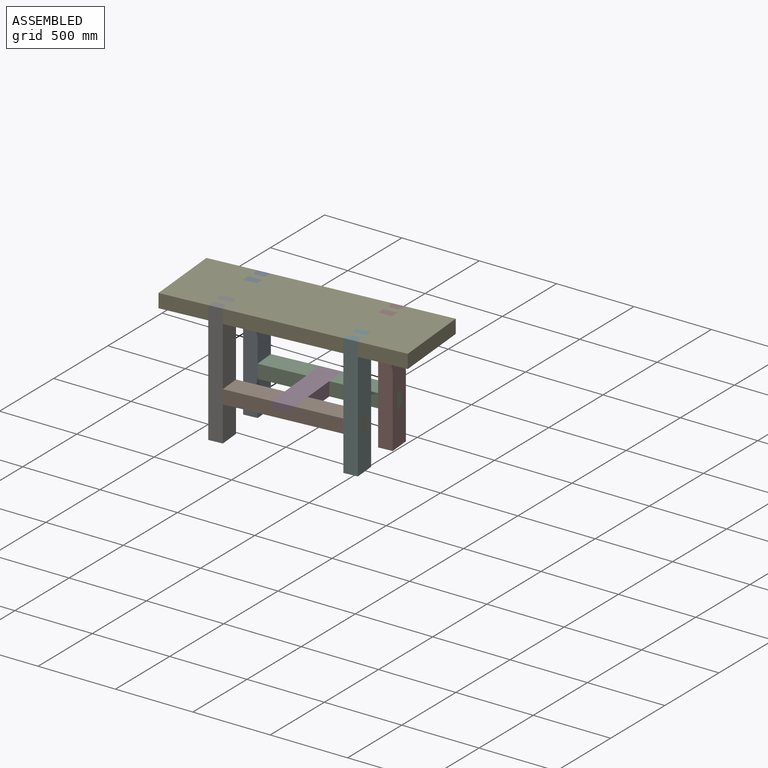
[diagram: assembled view]
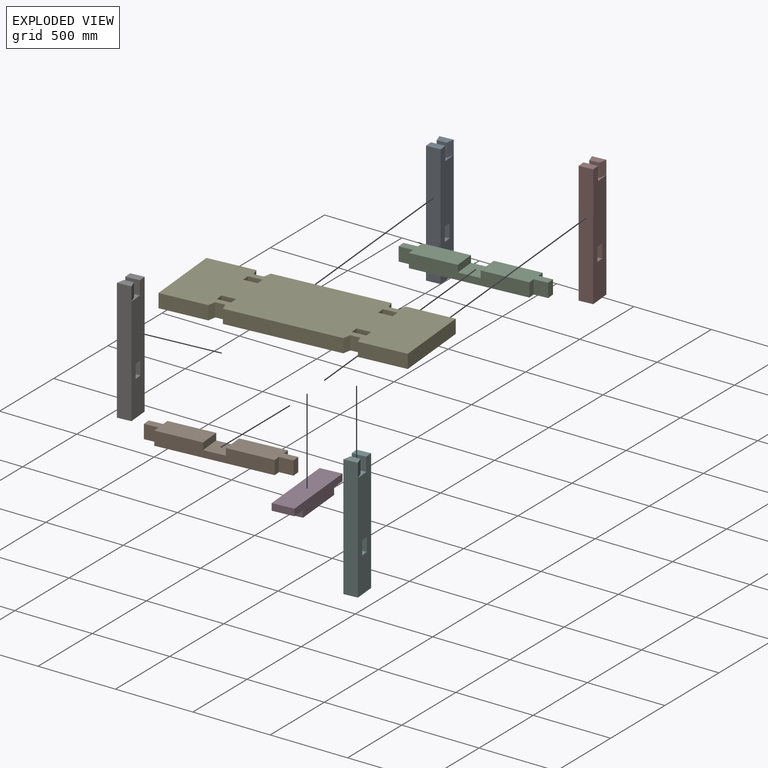
[diagram: exploded view]
GUIDED TOUR — MATED ASSEMBLY (Onshape document 76c9e357946768752bc6cd6b, AutoMate assembly 76c9e357946768752bc6cd6b_9625261e1ae037c5220bcdb9_71f5eba2f76652e58eee0722_default)

This assembly has 8 components, labeled P0..P7 below (a component is one placed occurrence of a part; the same part can appear more than once), held together by 21 mates. A mate is a constraint between two components; its type names the relative motion it leaves free:
  PLANAR — leaves sliding in the plane through the listed point (normal = the listed direction) and rotation about that normal free.
Axis/direction vectors are unit vectors and 'through' points are millimeter coordinates, both in the assembly's world frame.

MATES
  1. PLANAR "Planar 2": P4 <-> P5, direction (0.087, -0.996, 0.000) through (-127.85, -738.86, -859.41) mm
  2. PLANAR "Planar 16": P2 <-> P7, direction (0.996, 0.087, 0.000) through (-193.99, -492.87, -1329.31) mm
  3. PLANAR "Planar 15": P1 <-> P6, direction (0.000, 0.000, 1.000) through (-988.40, -884.27, -1284.86) mm
  4. PLANAR "Planar 8": P7 <-> P4, direction (-0.940, -0.342, 0.000) through (-195.24, -400.55, -859.41) mm
  5. PLANAR "Planar 12": P0 <-> P4, direction (0.087, -0.996, 0.000) through (-970.13, -583.08, -1208.66) mm
  6. PLANAR "Planar 18": P7 <-> P2, direction (-0.087, 0.996, 0.000) through (-151.65, -466.85, -1329.31) mm
  7. PLANAR "Planar 3": P5 <-> P4, direction (-0.985, 0.174, 0.000) through (-155.39, -856.01, -859.41) mm
  8. PLANAR "Planar 20": P3 <-> P1, direction (0.087, -0.996, 0.000) through (-526.86, -914.01, -1307.08) mm
  9. PLANAR "Planar 21": P3 <-> P1, direction (-0.996, -0.087, 0.000) through (-618.58, -667.06, -1324.59) mm
  10. PLANAR "Planar 19": P3 <-> P2, direction (0.000, 0.000, -1.000) through (-567.26, -452.22, -1329.31) mm
  11. PLANAR "Planar 6": P6 <-> P4, direction (-0.087, 0.996, 0.000) through (-950.21, -810.81, -1208.66) mm
  12. PLANAR "Planar 17": P2 <-> P7, direction (0.000, 0.000, 1.000) through (-327.95, -456.78, -1284.86) mm
  13. PLANAR "Planar 9": P7 <-> P4, direction (0.087, -0.996, 0.000) through (-147.78, -511.13, -1208.66) mm
  14. PLANAR "Planar 5": P6 <-> P4, direction (-0.985, 0.174, 0.000) through (-977.75, -927.96, -859.41) mm
  15. PLANAR "Planar 7": P7 <-> P4, direction (0.000, 0.000, 1.000) through (-154.40, -435.47, -903.86) mm
  16. PLANAR "Planar 10": P0 <-> P4, direction (0.000, 0.000, 1.000) through (-976.75, -507.42, -903.86) mm
  17. PLANAR "Planar 4": P6 <-> P4, direction (0.000, 0.000, 1.000) through (-943.59, -886.47, -903.86) mm
  18. PLANAR "Planar 1": P5 <-> P4, direction (0.000, 0.000, 1.000) through (-121.23, -814.53, -903.86) mm
  19. PLANAR "Planar 14": P6 <-> P1, direction (0.087, -0.996, 0.000) through (-946.34, -855.09, -1329.31) mm
  20. PLANAR "Planar 11": P0 <-> P4, direction (0.985, -0.174, 0.000) through (-942.60, -465.93, -859.41) mm
  21. PLANAR "Planar 13": P1 <-> P6, direction (-0.996, -0.087, 0.000) through (-903.99, -829.08, -1329.31) mm

ASSEMBLY ORDER
  1. P4 — the base component [order verified]
  2. P6 [order verified]
  3. P1 [order verified]
  4. P5 [order verified]
  5. P3 [order verified]
  6. P0 [order verified]
  7. P2 [order verified]
  8. P7 [order verified]
Order-tag legend:
  [order verified] — this step's position reverses a verified removal order: the component was checked to insert without passing through the ones already placed.

Of the 8 components, 8 carry the full construction recipe — the FeatureScript program that regenerates the part's solid from scratch; the rest are supplied as boundary geometry only.
Each toured component is shown spotlighted twice — in the assembled view, then in the exploded view, where a leader line traces a displaced component back to its assembled socket (saturated green if recipe-attached, orange if geometry-only; every other component desaturated gray) — followed by its recipe or geometry summary and the mates that hold it.
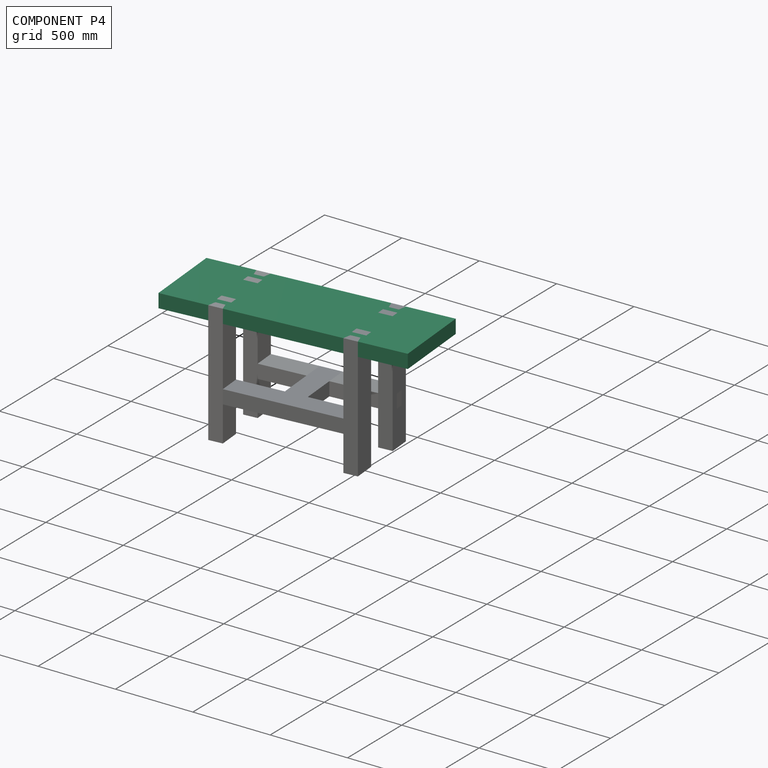
[diagram: component P4 — assembled]
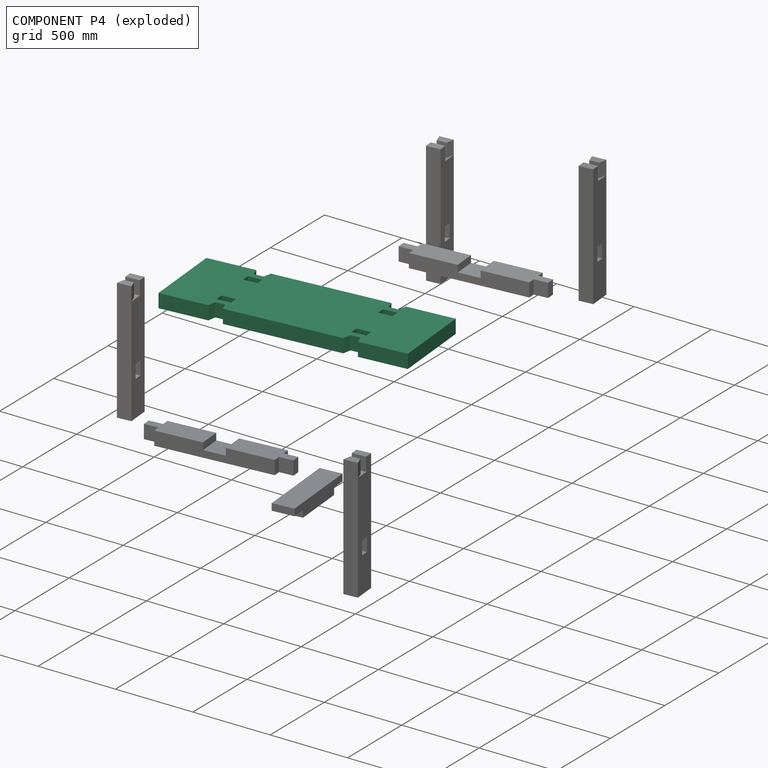
[diagram: component P4 — exploded]
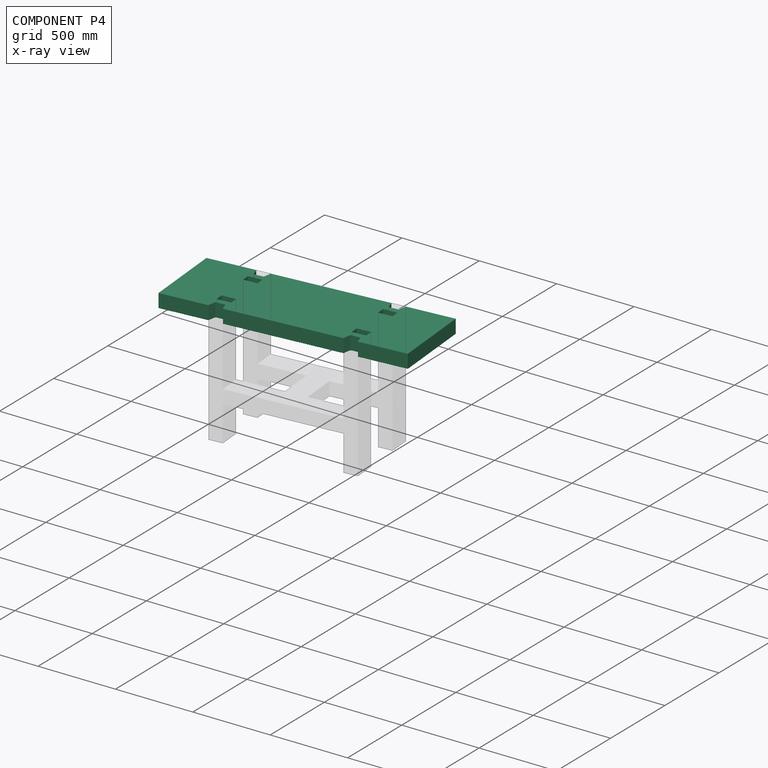
[diagram: component P4 — x-ray view]
COMPONENT P4 — recipe-attached (CADFS 00920089, mesh-verified: the recipe's output STEP matches this component's geometry to below the mesh-comparison resolution (tessellation chordal tolerance ~2.41 mm)).
Held by: PLANAR mate "Planar 2" to P5; PLANAR mate "Planar 8" to P7; PLANAR mate "Planar 12" to P0; PLANAR mate "Planar 3" to P5; PLANAR mate "Planar 6" to P6; PLANAR mate "Planar 9" to P7; PLANAR mate "Planar 5" to P6; PLANAR mate "Planar 7" to P7; PLANAR mate "Planar 10" to P0; PLANAR mate "Planar 4" to P6; PLANAR mate "Planar 1" to P5; PLANAR mate "Planar 11" to P0.
Construction recipe (FeatureScript — the CAD program that rebuilds this solid; sketch coordinates are in the units given by the * unit suffixes, e.g. mm):

FeatureScript 1511;
import(path : "onshape/std/geometry.fs", version : "1511.0");
import(path : "onshape/std/common.fs", version : "1511.0");
const mm = millimeter;
const VERTEX = EntityType.VERTEX;
const EDGE = EntityType.EDGE;
const FACE = EntityType.FACE;
const BODY = EntityType.BODY;
function v(x, y){return vector(x, y);}
function OD(order){return orderDisambiguation(order);}
function OSD(set){return originalSetDisambiguation(set);}
function TD(topology){return topologyDisambiguation(topology);}
function TDD(query){return trueDependencyDisambiguation(query);}
function sQuery(a, b, c) {return sketchEntityQuery(a, b, c);}

annotation { "Feature Type Name" : "Feature", "Feature Type Description" : "" }
export const myFeature = defineFeature(function(context is Context, id is Id, definition is map)
    precondition{}
    {
        {
            var Q0;
            Q0=qCreatedBy(makeId("Top.planeOp"),FACE);
            var sketch = newSketch(context, id + "F0", { "sketchPlane" : qUnion([Q0])});
            skLineSegment(sketch, "E0.bottom", {"start": v(0, 0) * mm, "end": v(1524, 0) * mm});
            skLineSegment(sketch, "E0.top", {"start": v(0, 508) * mm, "end": v(1524, 508) * mm});
            skLineSegment(sketch, "E0.left", {"start": v(0, 0) * mm, "end": v(0, 508) * mm});
            skLineSegment(sketch, "E0.right", {"start": v(1524, 0) * mm, "end": v(1524, 508) * mm});
            skSolve(sketch);
        }
        {
            var Q0;
            Q0=makeQuery(id+"F0.imprint","IMPRINT",FACE,{"disambiguationData":[TD([[makeQuery(id+"F0.imprint","IMPRINT",EDGE,{"derivedFrom":sQuery(id+"F0.wireOp",EDGE,"E0.bottom")}),1.0]])]});
            extrude(context, id + "F1", {"entities" : qUnion([Q0]), "depth" : 88.9 * mm, "offsetDistance" : 25.4 * mm});
        }
        {
            var Q0;
            Q0=makeQuery(id+"F1.opExtrude","CAP_FACE",FACE,{"disambiguationData":[OSD([sQuery(id+"F0.wireOp",EDGE,"E0.bottom"),sQuery(id+"F0.wireOp",EDGE,"E0.top"),sQuery(id+"F0.wireOp",EDGE,"E0.left"),sQuery(id+"F0.wireOp",EDGE,"E0.right")])],"isStart":false});
            var sketch = newSketch(context, id + "F2", { "sketchPlane" : qUnion([Q0])});
            skLineSegment(sketch, "E1", {"start": v(304.8, 0) * mm, "end": v(393.7, 0) * mm});
            skLineSegment(sketch, "E2", {"start": v(393.7, 0) * mm, "end": v(380.09, 50.8) * mm});
            skLineSegment(sketch, "E3", {"start": v(380.09, 50.8) * mm, "end": v(318.41, 50.8) * mm});
            skLineSegment(sketch, "E4", {"start": v(318.41, 50.8) * mm, "end": v(304.8, 0) * mm});
            skLineSegment(sketch, "E5", {"start": v(304.8, 88.9) * mm, "end": v(393.7, 88.9) * mm});
            skLineSegment(sketch, "E6", {"start": v(393.7, 88.9) * mm, "end": v(393.7, 139.7) * mm});
            skLineSegment(sketch, "E7", {"start": v(393.7, 139.7) * mm, "end": v(304.8, 139.7) * mm});
            skLineSegment(sketch, "E8", {"start": v(304.8, 139.7) * mm, "end": v(304.8, 88.9) * mm});
            skLineSegment(sketch, "E9", {"start": v(1130.3, 0) * mm, "end": v(1219.2, 0) * mm});
            skLineSegment(sketch, "E10", {"start": v(1219.2, 0) * mm, "end": v(1205.59, 50.8) * mm});
            skLineSegment(sketch, "E11", {"start": v(1205.59, 50.8) * mm, "end": v(1143.91, 50.8) * mm});
            skLineSegment(sketch, "E12", {"start": v(1143.91, 50.8) * mm, "end": v(1130.3, 0) * mm});
            skLineSegment(sketch, "E13", {"start": v(1130.3, 88.9) * mm, "end": v(1219.2, 88.9) * mm});
            skLineSegment(sketch, "E14", {"start": v(1219.2, 88.9) * mm, "end": v(1219.2, 139.7) * mm});
            skLineSegment(sketch, "E15", {"start": v(1219.2, 139.7) * mm, "end": v(1130.3, 139.7) * mm});
            skLineSegment(sketch, "E16", {"start": v(1130.3, 139.7) * mm, "end": v(1130.3, 88.9) * mm});
            skLineSegment(sketch, "E17", {"start": v(1524, 254) * mm, "end": v(0, 254) * mm, "construction": true});
            skLineSegment(sketch, "E18.MirrorCS", {"start": v(380.09, 457.2) * mm, "end": v(318.41, 457.2) * mm});
            skLineSegment(sketch, "E19.MirrorCS", {"start": v(318.41, 457.2) * mm, "end": v(304.8, 508) * mm});
            skLineSegment(sketch, "E20.MirrorCS", {"start": v(1219.2, 419.1) * mm, "end": v(1219.2, 368.3) * mm});
            skLineSegment(sketch, "E21.MirrorCS", {"start": v(393.7, 419.1) * mm, "end": v(393.7, 368.3) * mm});
            skLineSegment(sketch, "E22.MirrorCS", {"start": v(393.7, 508) * mm, "end": v(380.09, 457.2) * mm});
            skLineSegment(sketch, "E23.MirrorCS", {"start": v(304.8, 368.3) * mm, "end": v(304.8, 419.1) * mm});
            skLineSegment(sketch, "E24.MirrorCS", {"start": v(1219.2, 508) * mm, "end": v(1205.59, 457.2) * mm});
            skLineSegment(sketch, "E25.MirrorCS", {"start": v(1143.91, 457.2) * mm, "end": v(1130.3, 508) * mm});
            skLineSegment(sketch, "E26.MirrorCS", {"start": v(1130.3, 368.3) * mm, "end": v(1130.3, 419.1) * mm});
            skLineSegment(sketch, "E27.MirrorCS", {"start": v(1205.59, 457.2) * mm, "end": v(1143.91, 457.2) * mm});
            skLineSegment(sketch, "E28.MirrorCS", {"start": v(1130.3, 508) * mm, "end": v(1219.2, 508) * mm});
            skLineSegment(sketch, "E29.MirrorCS", {"start": v(304.8, 508) * mm, "end": v(393.7, 508) * mm});
            skLineSegment(sketch, "E30.MirrorCS", {"start": v(1219.2, 368.3) * mm, "end": v(1130.3, 368.3) * mm});
            skLineSegment(sketch, "E31.MirrorCS", {"start": v(304.8, 419.1) * mm, "end": v(393.7, 419.1) * mm});
            skLineSegment(sketch, "E32.MirrorCS", {"start": v(1130.3, 419.1) * mm, "end": v(1219.2, 419.1) * mm});
            skLineSegment(sketch, "E33.MirrorCS", {"start": v(393.7, 368.3) * mm, "end": v(304.8, 368.3) * mm});
            skSolve(sketch);
        }
        {
            var Q0;
            Q0 = qSketchRegion(id + "F2", true);
            extrude(context, id + "F3", {"entities" : qUnion([Q0]), "operationType" : NewBodyOperationType.REMOVE, "endBound" : BoundingType.UP_TO_NEXT, "oppositeDirection" : true, "depth" : 25.4 * mm, "offsetDistance" : 25.4 * mm});
        }
    });
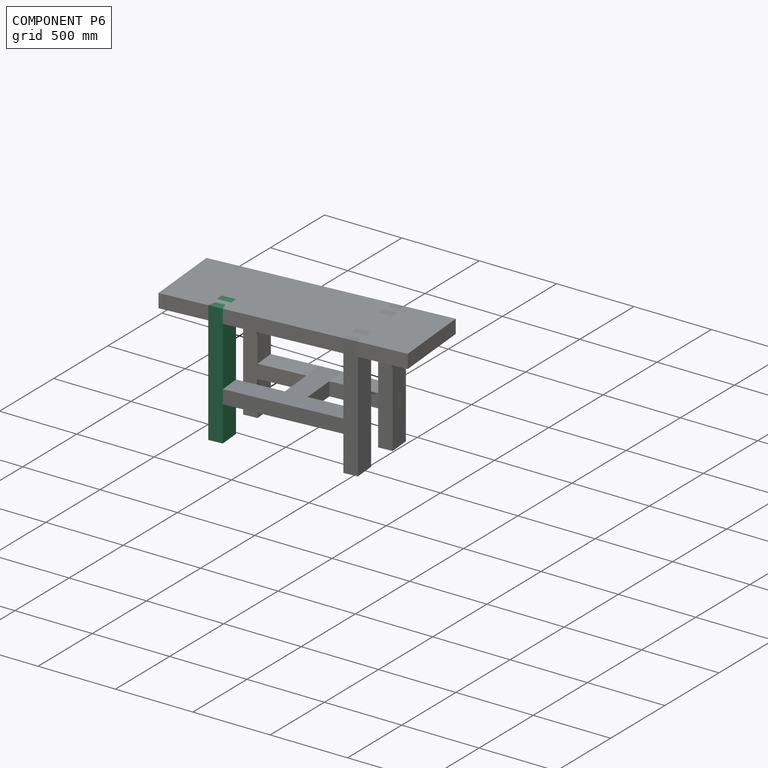
[diagram: component P6 — assembled]
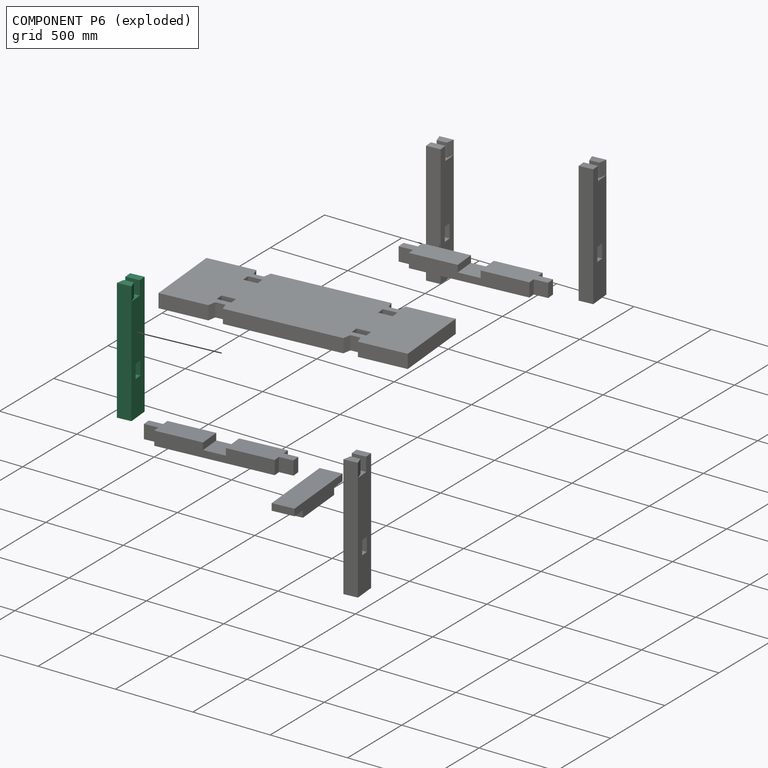
[diagram: component P6 — exploded]
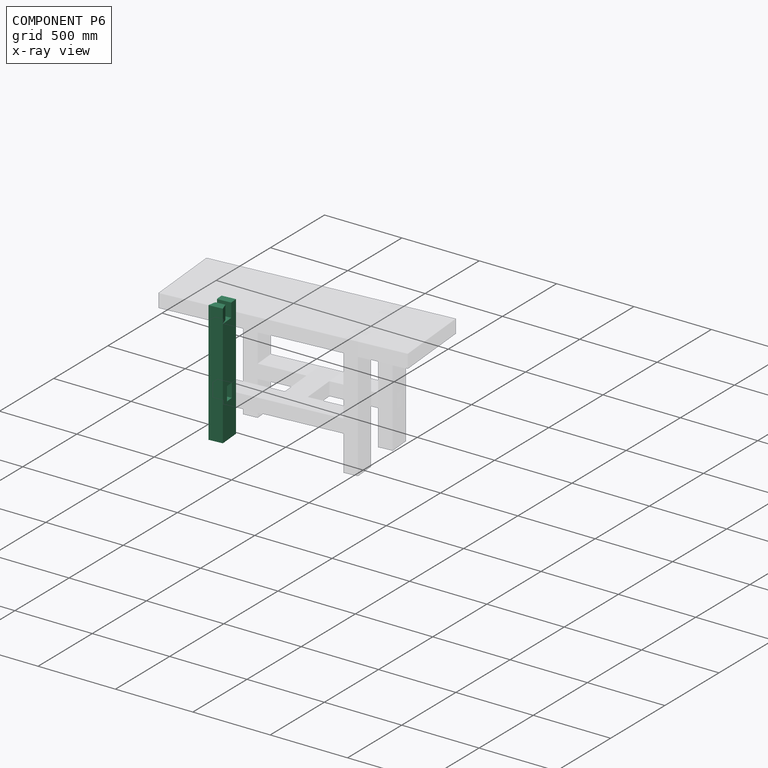
[diagram: component P6 — x-ray view]
COMPONENT P6 — same part as P0 (CADFS 00920090); its construction recipe is shown at P0.
Held by: PLANAR mate "Planar 15" to P1; PLANAR mate "Planar 6" to P4; PLANAR mate "Planar 5" to P4; PLANAR mate "Planar 4" to P4; PLANAR mate "Planar 14" to P1; PLANAR mate "Planar 13" to P1.
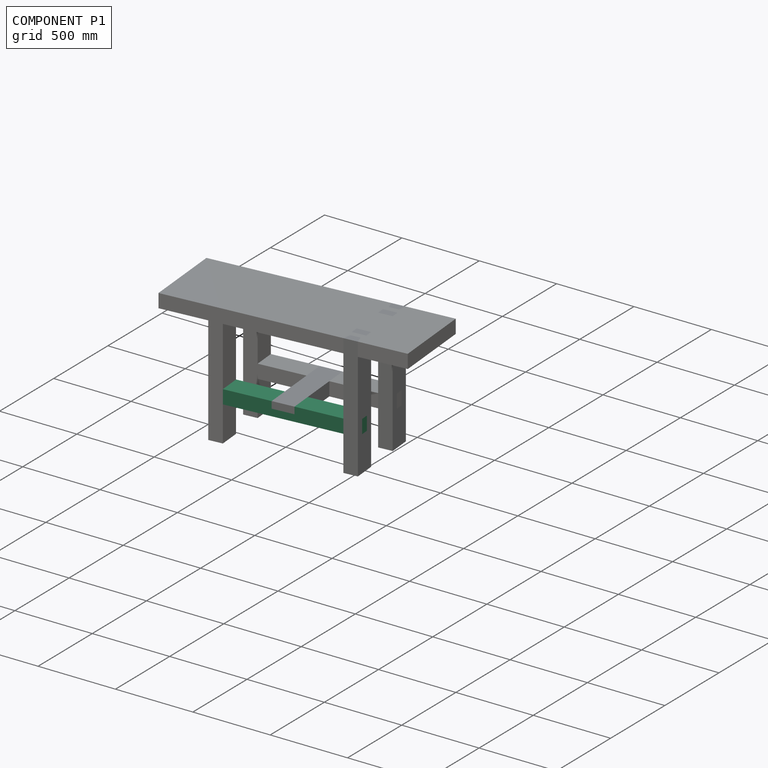
[diagram: component P1 — assembled]
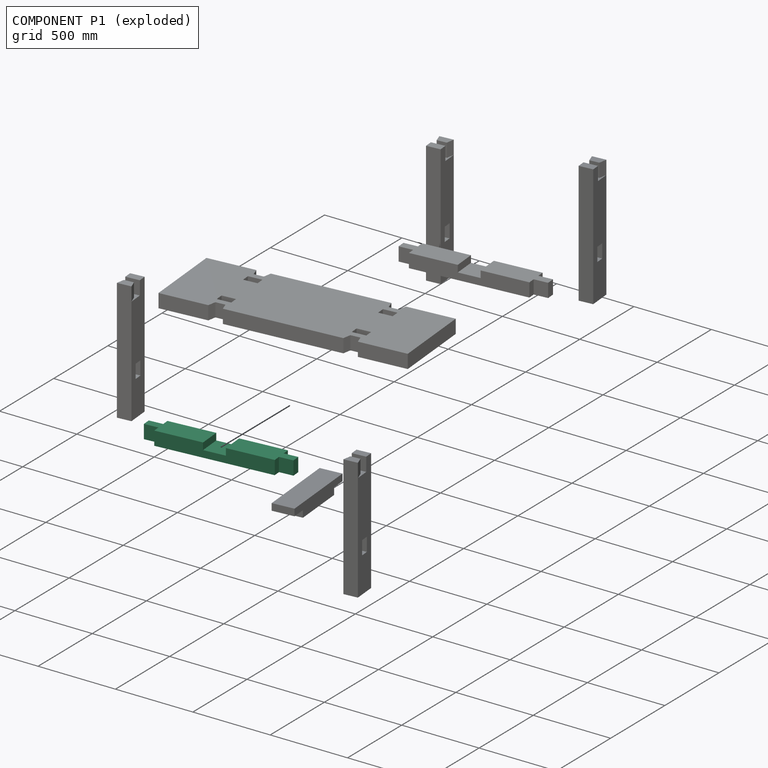
[diagram: component P1 — exploded]
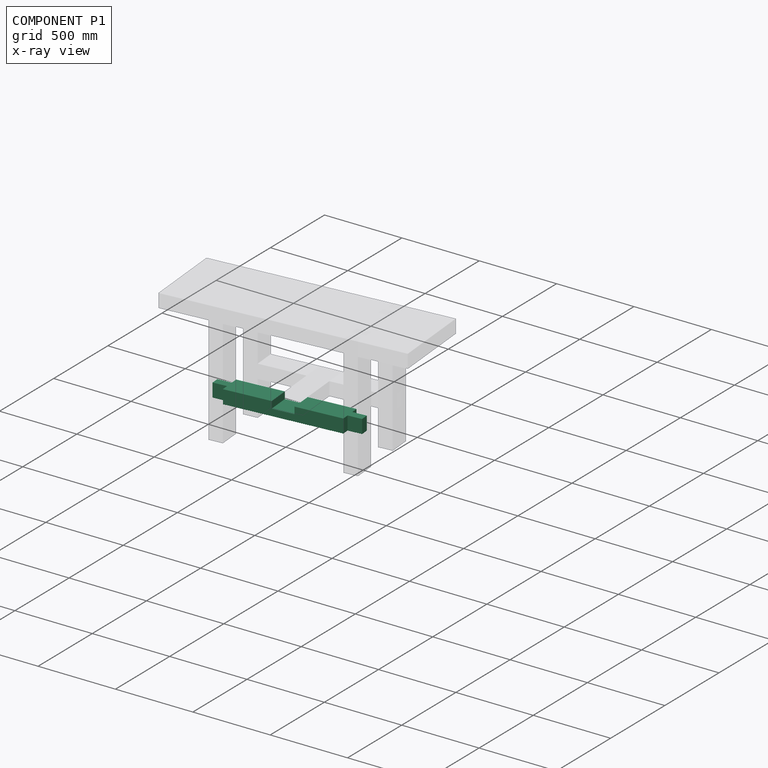
[diagram: component P1 — x-ray view]
COMPONENT P1 — recipe-attached (CADFS 00920091, mesh-verified: the recipe's output STEP matches this component's geometry to below the mesh-comparison resolution (tessellation chordal tolerance ~1.39 mm)).
Held by: PLANAR mate "Planar 15" to P6; PLANAR mate "Planar 20" to P3; PLANAR mate "Planar 21" to P3; PLANAR mate "Planar 14" to P6; PLANAR mate "Planar 13" to P6.
Construction recipe (FeatureScript — the CAD program that rebuilds this solid; sketch coordinates are in the units given by the * unit suffixes, e.g. mm):

FeatureScript 1511;
import(path : "onshape/std/geometry.fs", version : "1511.0");
import(path : "onshape/std/common.fs", version : "1511.0");
const mm = millimeter;
const VERTEX = EntityType.VERTEX;
const EDGE = EntityType.EDGE;
const FACE = EntityType.FACE;
const BODY = EntityType.BODY;
function v(x, y){return vector(x, y);}
function OD(order){return orderDisambiguation(order);}
function OSD(set){return originalSetDisambiguation(set);}
function TD(topology){return topologyDisambiguation(topology);}
function TDD(query){return trueDependencyDisambiguation(query);}
function sQuery(a, b, c) {return sketchEntityQuery(a, b, c);}

annotation { "Feature Type Name" : "Feature", "Feature Type Description" : "" }
export const myFeature = defineFeature(function(context is Context, id is Id, definition is map)
    precondition{}
    {
        {
            var Q0;
            Q0=qCreatedBy(makeId("Top.planeOp"),FACE);
            var sketch = newSketch(context, id + "F0", { "sketchPlane" : qUnion([Q0])});
            skLineSegment(sketch, "E0.bottom", {"start": v(0, 0) * mm, "end": v(914.4, 0) * mm});
            skLineSegment(sketch, "E0.top", {"start": v(0, 139.7) * mm, "end": v(914.4, 139.7) * mm});
            skLineSegment(sketch, "E0.left", {"start": v(0, 0) * mm, "end": v(0, 139.7) * mm});
            skLineSegment(sketch, "E0.right", {"start": v(914.4, 0) * mm, "end": v(914.4, 139.7) * mm});
            skSolve(sketch);
        }
        {
            var Q0;
            Q0=makeQuery(id+"F0.imprint","IMPRINT",FACE,{"disambiguationData":[TD([[makeQuery(id+"F0.imprint","IMPRINT",EDGE,{"derivedFrom":sQuery(id+"F0.wireOp",EDGE,"E0.bottom")}),1.0]])]});
            extrude(context, id + "F1", {"entities" : qUnion([Q0]), "depth" : 88.9 * mm, "offsetDistance" : 25.4 * mm});
        }
        {
            var Q0;
            Q0=makeQuery(id+"F1.opExtrude","CAP_FACE",FACE,{"disambiguationData":[OSD([sQuery(id+"F0.wireOp",EDGE,"E0.bottom"),sQuery(id+"F0.wireOp",EDGE,"E0.top"),sQuery(id+"F0.wireOp",EDGE,"E0.left"),sQuery(id+"F0.wireOp",EDGE,"E0.right")])],"isStart":false});
            var sketch = newSketch(context, id + "F2", { "sketchPlane" : qUnion([Q0])});
            skLineSegment(sketch, "E1.bottom", {"start": v(0, 139.7) * mm, "end": v(88.9, 139.7) * mm});
            skLineSegment(sketch, "E1.top", {"start": v(0, 95.25) * mm, "end": v(88.9, 95.25) * mm});
            skLineSegment(sketch, "E1.left", {"start": v(0, 139.7) * mm, "end": v(0, 95.25) * mm});
            skLineSegment(sketch, "E1.right", {"start": v(88.9, 139.7) * mm, "end": v(88.9, 95.25) * mm});
            skLineSegment(sketch, "E2.bottom", {"start": v(0, 0) * mm, "end": v(88.9, 0) * mm});
            skLineSegment(sketch, "E2.top", {"start": v(0, 44.45) * mm, "end": v(88.9, 44.45) * mm});
            skLineSegment(sketch, "E2.left", {"start": v(0, 0) * mm, "end": v(0, 44.45) * mm});
            skLineSegment(sketch, "E2.right", {"start": v(88.9, 0) * mm, "end": v(88.9, 44.45) * mm});
            skLineSegment(sketch, "E3", {"start": v(457.2, 139.7) * mm, "end": v(457.2, 0) * mm, "construction": true});
            skLineSegment(sketch, "E4.MirrorCS", {"start": v(914.4, 139.7) * mm, "end": v(914.4, 95.25) * mm});
            skLineSegment(sketch, "E5.MirrorCS", {"start": v(914.4, 139.7) * mm, "end": v(825.5, 139.7) * mm});
            skLineSegment(sketch, "E6.MirrorCS", {"start": v(825.5, 139.7) * mm, "end": v(825.5, 95.25) * mm});
            skLineSegment(sketch, "E7.MirrorCS", {"start": v(914.4, 0) * mm, "end": v(914.4, 44.45) * mm});
            skLineSegment(sketch, "E8.MirrorCS", {"start": v(914.4, 44.45) * mm, "end": v(825.5, 44.45) * mm});
            skLineSegment(sketch, "E9.MirrorCS", {"start": v(914.4, 0) * mm, "end": v(825.5, 0) * mm});
            skLineSegment(sketch, "E10.MirrorCS", {"start": v(914.4, 95.25) * mm, "end": v(825.5, 95.25) * mm});
            skLineSegment(sketch, "E11.MirrorCS", {"start": v(825.5, 0) * mm, "end": v(825.5, 44.45) * mm});
            skSolve(sketch);
        }
        {
            var Q0;
            Q0 = qSketchRegion(id + "F2", true);
            extrude(context, id + "F3", {"entities" : qUnion([Q0]), "operationType" : NewBodyOperationType.REMOVE, "endBound" : BoundingType.UP_TO_NEXT, "oppositeDirection" : true, "depth" : 25.4 * mm, "offsetDistance" : 25.4 * mm});
        }
        {
            var Q0;
            Q0=makeQuery(id+"F1.opExtrude","SWEPT_FACE",FACE,{"disambiguationData":[OSD([sQuery(id+"F0.wireOp",EDGE,"E0.bottom")])]});
            var sketch = newSketch(context, id + "F4", { "sketchPlane" : qUnion([Q0])});
            skLineSegment(sketch, "E12.bottom", {"start": v(387.35, 88.9) * mm, "end": v(527.05, 88.9) * mm});
            skLineSegment(sketch, "E12.top", {"start": v(387.35, 44.45) * mm, "end": v(527.05, 44.45) * mm});
            skLineSegment(sketch, "E12.left", {"start": v(387.35, 88.9) * mm, "end": v(387.35, 44.45) * mm});
            skLineSegment(sketch, "E12.right", {"start": v(527.05, 88.9) * mm, "end": v(527.05, 44.45) * mm});
            skSolve(sketch);
        }
        {
            var Q0;
            Q0 = qSketchRegion(id + "F4", true);
            extrude(context, id + "F5", {"entities" : qUnion([Q0]), "operationType" : NewBodyOperationType.REMOVE, "endBound" : BoundingType.UP_TO_NEXT, "oppositeDirection" : true, "depth" : 25.4 * mm, "offsetDistance" : 25.4 * mm});
        }
    });
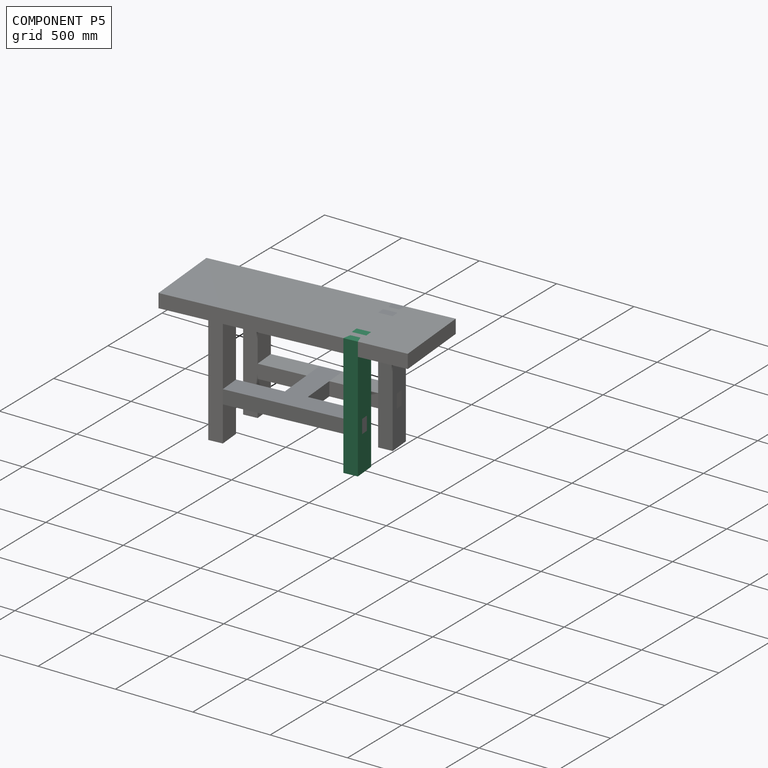
[diagram: component P5 — assembled]
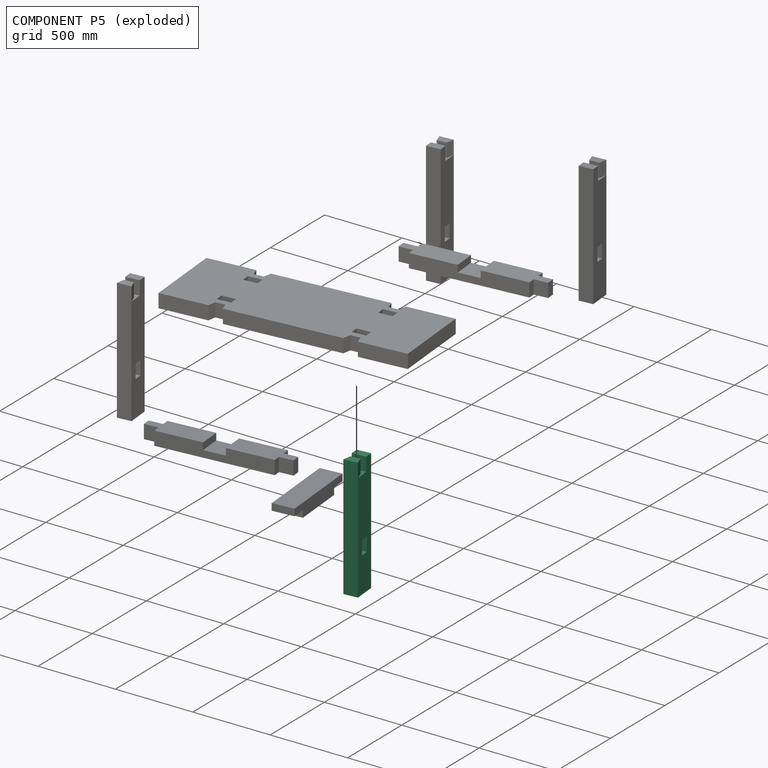
[diagram: component P5 — exploded]
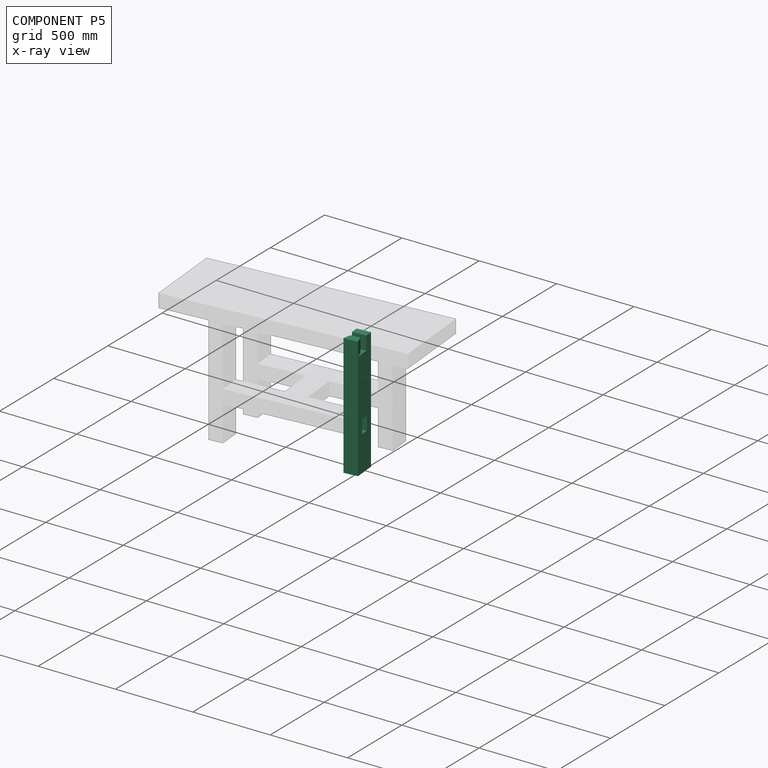
[diagram: component P5 — x-ray view]
COMPONENT P5 — same part as P0 (CADFS 00920090); its construction recipe is shown at P0.
Held by: PLANAR mate "Planar 2" to P4; PLANAR mate "Planar 3" to P4; PLANAR mate "Planar 1" to P4.
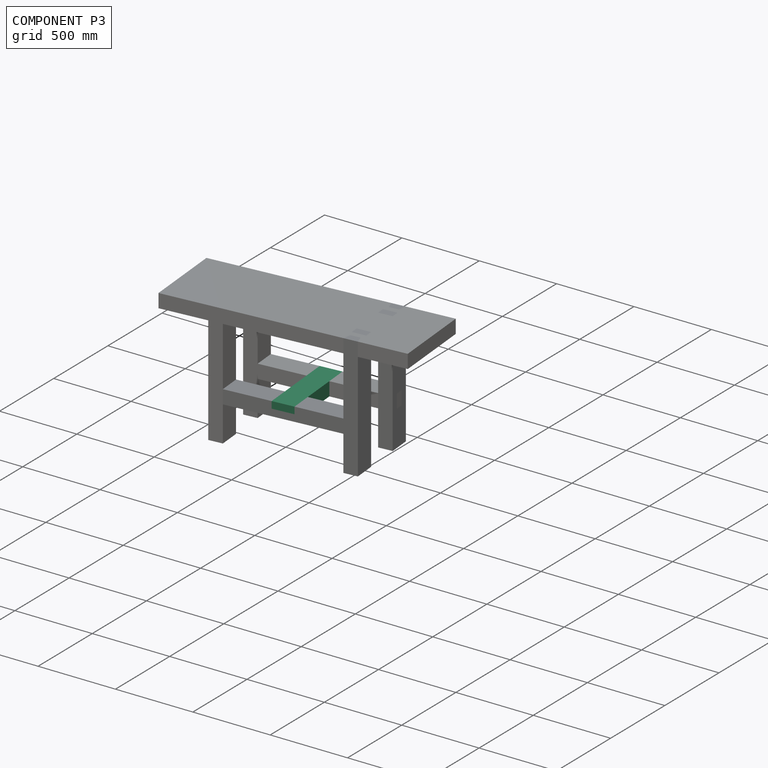
[diagram: component P3 — assembled]
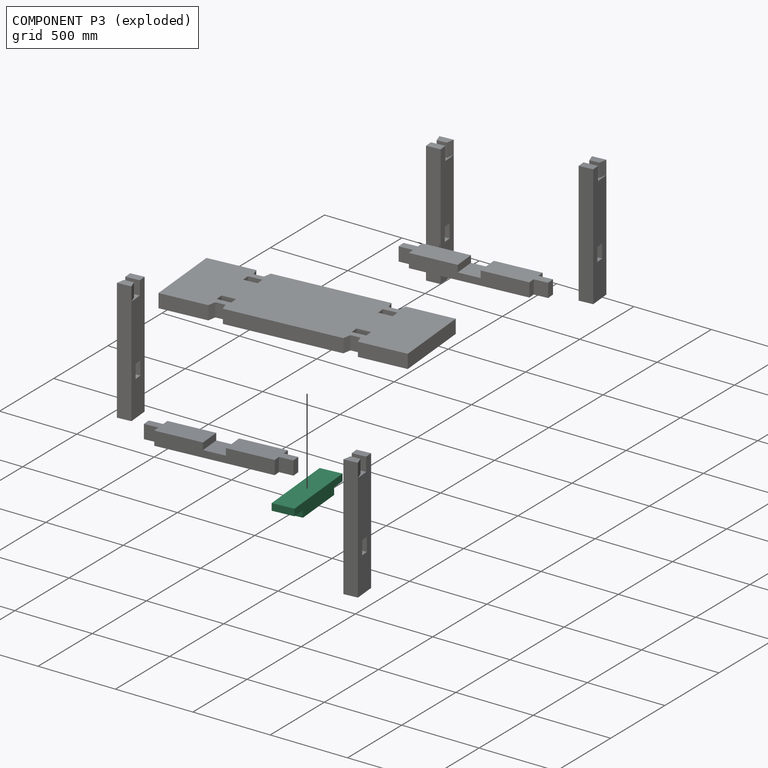
[diagram: component P3 — exploded]
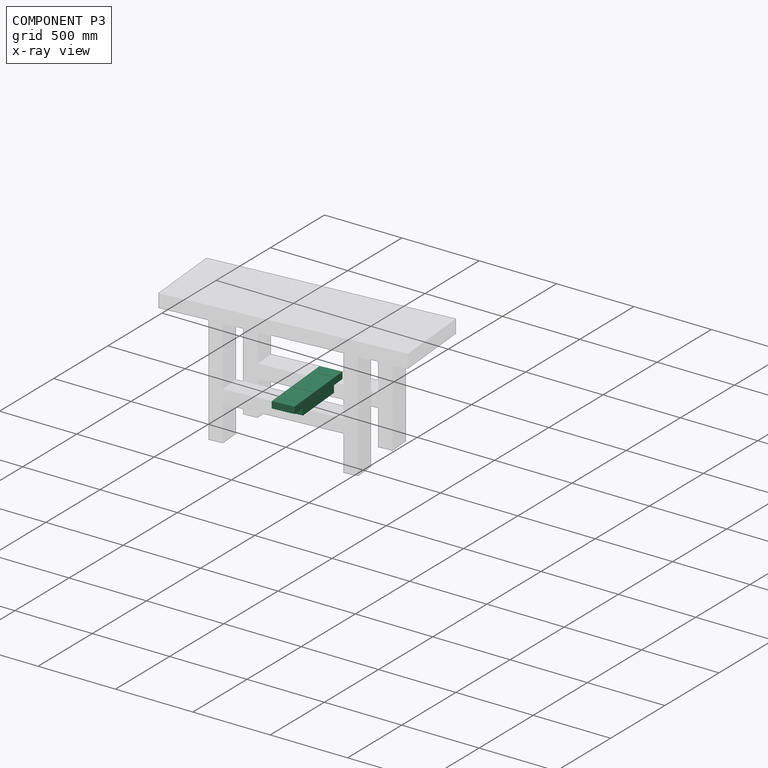
[diagram: component P3 — x-ray view]
COMPONENT P3 — recipe-attached (CADFS 00920092, mesh-verified: the recipe's output STEP matches this component's geometry to below the mesh-comparison resolution (tessellation chordal tolerance ~0.801 mm)).
Held by: PLANAR mate "Planar 20" to P1; PLANAR mate "Planar 21" to P1; PLANAR mate "Planar 19" to P2.
Construction recipe (FeatureScript — the CAD program that rebuilds this solid; sketch coordinates are in the units given by the * unit suffixes, e.g. mm):

FeatureScript 1511;
import(path : "onshape/std/geometry.fs", version : "1511.0");
import(path : "onshape/std/common.fs", version : "1511.0");
const mm = millimeter;
const VERTEX = EntityType.VERTEX;
const EDGE = EntityType.EDGE;
const FACE = EntityType.FACE;
const BODY = EntityType.BODY;
function v(x, y){return vector(x, y);}
function OD(order){return orderDisambiguation(order);}
function OSD(set){return originalSetDisambiguation(set);}
function TD(topology){return topologyDisambiguation(topology);}
function TDD(query){return trueDependencyDisambiguation(query);}
function sQuery(a, b, c) {return sketchEntityQuery(a, b, c);}

annotation { "Feature Type Name" : "Feature", "Feature Type Description" : "" }
export const myFeature = defineFeature(function(context is Context, id is Id, definition is map)
    precondition{}
    {
        {
            var Q0;
            Q0=qCreatedBy(makeId("Top.planeOp"),FACE);
            var sketch = newSketch(context, id + "F0", { "sketchPlane" : qUnion([Q0])});
            skLineSegment(sketch, "E0.bottom", {"start": v(0, 0) * mm, "end": v(508, 0) * mm});
            skLineSegment(sketch, "E0.top", {"start": v(0, 139.7) * mm, "end": v(508, 139.7) * mm});
            skLineSegment(sketch, "E0.left", {"start": v(0, 0) * mm, "end": v(0, 139.7) * mm});
            skLineSegment(sketch, "E0.right", {"start": v(508, 0) * mm, "end": v(508, 139.7) * mm});
            skSolve(sketch);
        }
        {
            var Q0;
            Q0=makeQuery(id+"F0.imprint","IMPRINT",FACE,{"disambiguationData":[TD([[makeQuery(id+"F0.imprint","IMPRINT",EDGE,{"derivedFrom":sQuery(id+"F0.wireOp",EDGE,"E0.bottom")}),1.0]])]});
            extrude(context, id + "F1", {"entities" : qUnion([Q0]), "depth" : 88.9 * mm, "offsetDistance" : 25.4 * mm});
        }
        {
            var Q0;
            Q0=makeQuery(id+"F1.opExtrude","CAP_FACE",FACE,{"disambiguationData":[OSD([sQuery(id+"F0.wireOp",EDGE,"E0.bottom"),sQuery(id+"F0.wireOp",EDGE,"E0.top"),sQuery(id+"F0.wireOp",EDGE,"E0.left"),sQuery(id+"F0.wireOp",EDGE,"E0.right")])],"isStart":true});
            var sketch = newSketch(context, id + "F2", { "sketchPlane" : qUnion([Q0])});
            skLineSegment(sketch, "E1.bottom", {"start": v(0, 0) * mm, "end": v(88.9, 0) * mm});
            skLineSegment(sketch, "E1.top", {"start": v(0, -139.7) * mm, "end": v(88.9, -139.7) * mm});
            skLineSegment(sketch, "E1.left", {"start": v(0, 0) * mm, "end": v(0, -139.7) * mm});
            skLineSegment(sketch, "E1.right", {"start": v(88.9, 0) * mm, "end": v(88.9, -139.7) * mm});
            skLineSegment(sketch, "E2.bottom", {"start": v(508, 0) * mm, "end": v(419.1, 0) * mm});
            skLineSegment(sketch, "E2.top", {"start": v(508, -139.7) * mm, "end": v(419.1, -139.7) * mm});
            skLineSegment(sketch, "E2.left", {"start": v(508, 0) * mm, "end": v(508, -139.7) * mm});
            skLineSegment(sketch, "E2.right", {"start": v(419.1, 0) * mm, "end": v(419.1, -139.7) * mm});
            skSolve(sketch);
        }
        {
            var Q0;
            Q0 = qSketchRegion(id + "F2", true);
            extrude(context, id + "F3", {"entities" : qUnion([Q0]), "operationType" : NewBodyOperationType.REMOVE, "oppositeDirection" : true, "depth" : 44.45 * mm, "offsetDistance" : 25.4 * mm});
        }
    });
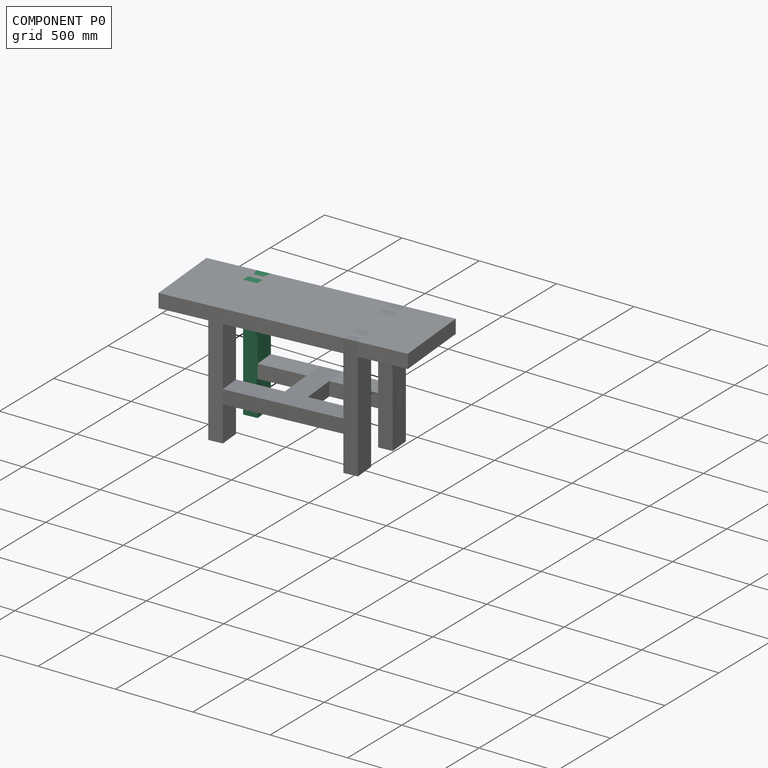
[diagram: component P0 — assembled]
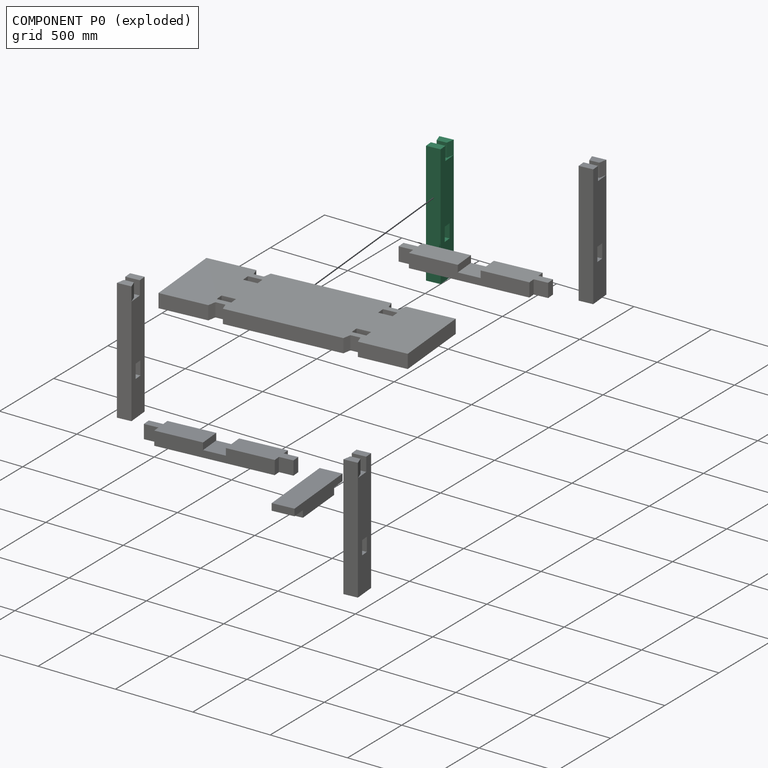
[diagram: component P0 — exploded]
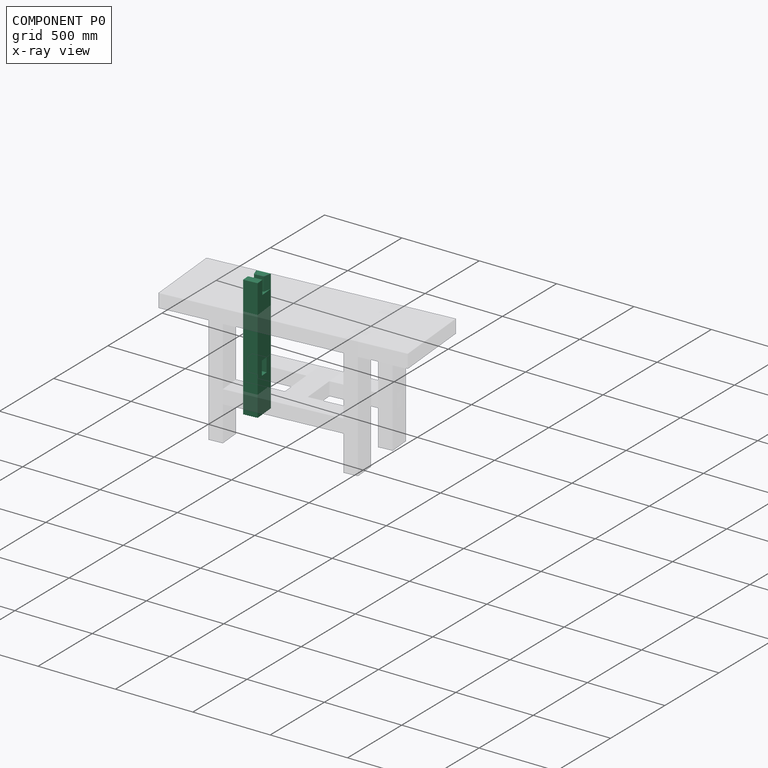
[diagram: component P0 — x-ray view]
COMPONENT P0 — recipe-attached (CADFS 00920090, mesh-verified: the recipe's output STEP matches this component's geometry to below the mesh-comparison resolution (tessellation chordal tolerance ~1.21 mm)).
Held by: PLANAR mate "Planar 12" to P4; PLANAR mate "Planar 10" to P4; PLANAR mate "Planar 11" to P4.
Construction recipe (FeatureScript — the CAD program that rebuilds this solid; sketch coordinates are in the units given by the * unit suffixes, e.g. mm):

FeatureScript 1511;
import(path : "onshape/std/geometry.fs", version : "1511.0");
import(path : "onshape/std/common.fs", version : "1511.0");
const mm = millimeter;
const VERTEX = EntityType.VERTEX;
const EDGE = EntityType.EDGE;
const FACE = EntityType.FACE;
const BODY = EntityType.BODY;
function v(x, y){return vector(x, y);}
function OD(order){return orderDisambiguation(order);}
function OSD(set){return originalSetDisambiguation(set);}
function TD(topology){return topologyDisambiguation(topology);}
function TDD(query){return trueDependencyDisambiguation(query);}
function sQuery(a, b, c) {return sketchEntityQuery(a, b, c);}

annotation { "Feature Type Name" : "Feature", "Feature Type Description" : "" }
export const myFeature = defineFeature(function(context is Context, id is Id, definition is map)
    precondition{}
    {
        {
            var Q0;
            Q0=qCreatedBy(makeId("Top.planeOp"),FACE);
            var sketch = newSketch(context, id + "F0", { "sketchPlane" : qUnion([Q0])});
            skLineSegment(sketch, "E0.bottom", {"start": v(0, 0) * mm, "end": v(88.9, 0) * mm});
            skLineSegment(sketch, "E0.top", {"start": v(0, 139.7) * mm, "end": v(88.9, 139.7) * mm});
            skLineSegment(sketch, "E0.left", {"start": v(0, 0) * mm, "end": v(0, 139.7) * mm});
            skLineSegment(sketch, "E0.right", {"start": v(88.9, 0) * mm, "end": v(88.9, 139.7) * mm});
            skSolve(sketch);
        }
        {
            var Q0;
            Q0=makeQuery(id+"F0.imprint","IMPRINT",FACE,{"disambiguationData":[TD([[makeQuery(id+"F0.imprint","IMPRINT",EDGE,{"derivedFrom":sQuery(id+"F0.wireOp",EDGE,"E0.bottom")}),1.0]])]});
            extrude(context, id + "F1", {"entities" : qUnion([Q0]), "depth" : 787.4 * mm, "offsetDistance" : 25.4 * mm});
        }
        {
            var Q0;
            Q0=makeQuery(id+"F1.opExtrude","CAP_FACE",FACE,{"disambiguationData":[OSD([sQuery(id+"F0.wireOp",EDGE,"E0.bottom"),sQuery(id+"F0.wireOp",EDGE,"E0.top"),sQuery(id+"F0.wireOp",EDGE,"E0.left"),sQuery(id+"F0.wireOp",EDGE,"E0.right")])],"isStart":false});
            var sketch = newSketch(context, id + "F2", { "sketchPlane" : qUnion([Q0])});
            skLineSegment(sketch, "E1", {"start": v(0, 0) * mm, "end": v(88.9, 0) * mm});
            skLineSegment(sketch, "E2", {"start": v(88.9, 0) * mm, "end": v(75.29, 50.8) * mm});
            skLineSegment(sketch, "E3", {"start": v(75.29, 50.8) * mm, "end": v(13.61, 50.8) * mm});
            skLineSegment(sketch, "E4", {"start": v(13.61, 50.8) * mm, "end": v(0, 0) * mm});
            skLineSegment(sketch, "E5", {"start": v(0, 139.7) * mm, "end": v(88.9, 139.7) * mm});
            skLineSegment(sketch, "E6", {"start": v(88.9, 139.7) * mm, "end": v(88.9, 88.9) * mm});
            skLineSegment(sketch, "E7", {"start": v(88.9, 88.9) * mm, "end": v(0, 88.9) * mm});
            skLineSegment(sketch, "E8", {"start": v(0, 88.9) * mm, "end": v(0, 139.7) * mm});
            skSolve(sketch);
        }
        {
            var Q0;
            {var subQ2=sQuery(id+"F2.wireOp",EDGE,"E2");Q0=makeQuery(id+"F2.imprint","IMPRINT",FACE,{"disambiguationData":[TD([[makeQuery(id+"F2.imprint","IMPRINT",EDGE,{"derivedFrom":subQ2}),-1.0]])]});}
            extrude(context, id + "F3", {"entities" : qUnion([Q0]), "operationType" : NewBodyOperationType.REMOVE, "oppositeDirection" : true, "depth" : 88.9 * mm, "offsetDistance" : 25.4 * mm});
        }
        {
            var Q0;
            Q0=makeQuery(id+"F1.opExtrude","SWEPT_FACE",FACE,{"disambiguationData":[OSD([sQuery(id+"F0.wireOp",EDGE,"E0.left")])]});
            var sketch = newSketch(context, id + "F4", { "sketchPlane" : qUnion([Q0])});
            skLineSegment(sketch, "E9.bottom", {"start": v(-95.25, 317.5) * mm, "end": v(-44.45, 317.5) * mm});
            skLineSegment(sketch, "E9.top", {"start": v(-95.25, 228.6) * mm, "end": v(-44.45, 228.6) * mm});
            skLineSegment(sketch, "E9.left", {"start": v(-95.25, 317.5) * mm, "end": v(-95.25, 228.6) * mm});
            skLineSegment(sketch, "E9.right", {"start": v(-44.45, 317.5) * mm, "end": v(-44.45, 228.6) * mm});
            skSolve(sketch);
        }
        {
            var Q0;
            Q0=makeQuery(id+"F4.imprint","IMPRINT",FACE,{"disambiguationData":[TD([[makeQuery(id+"F4.imprint","IMPRINT",EDGE,{"derivedFrom":sQuery(id+"F4.wireOp",EDGE,"E9.bottom")}),-1.0]])]});
            extrude(context, id + "F5", {"entities" : qUnion([Q0]), "operationType" : NewBodyOperationType.REMOVE, "endBound" : BoundingType.UP_TO_NEXT, "oppositeDirection" : true, "depth" : 25.4 * mm, "offsetDistance" : 25.4 * mm});
        }
    });
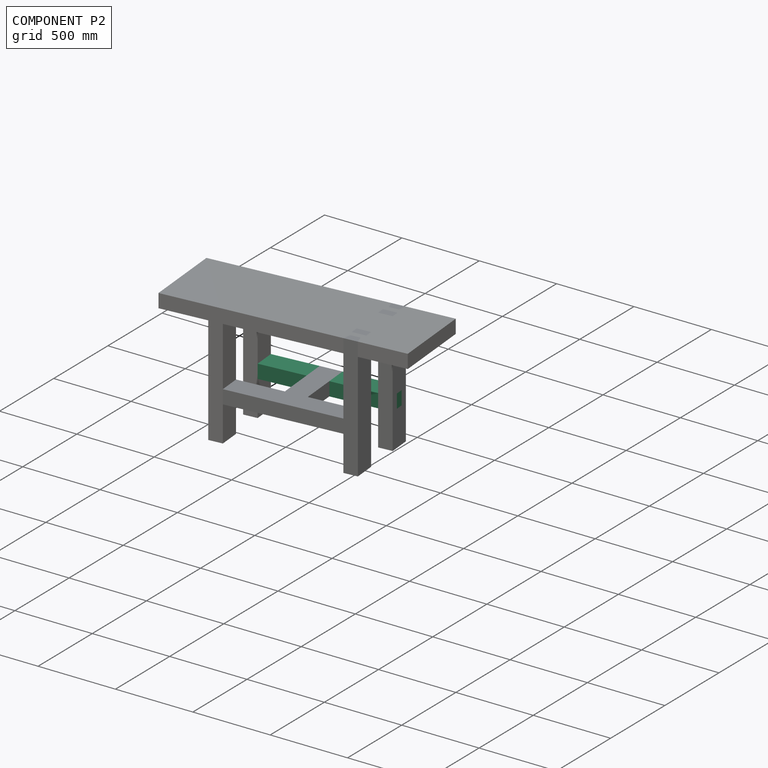
[diagram: component P2 — assembled]
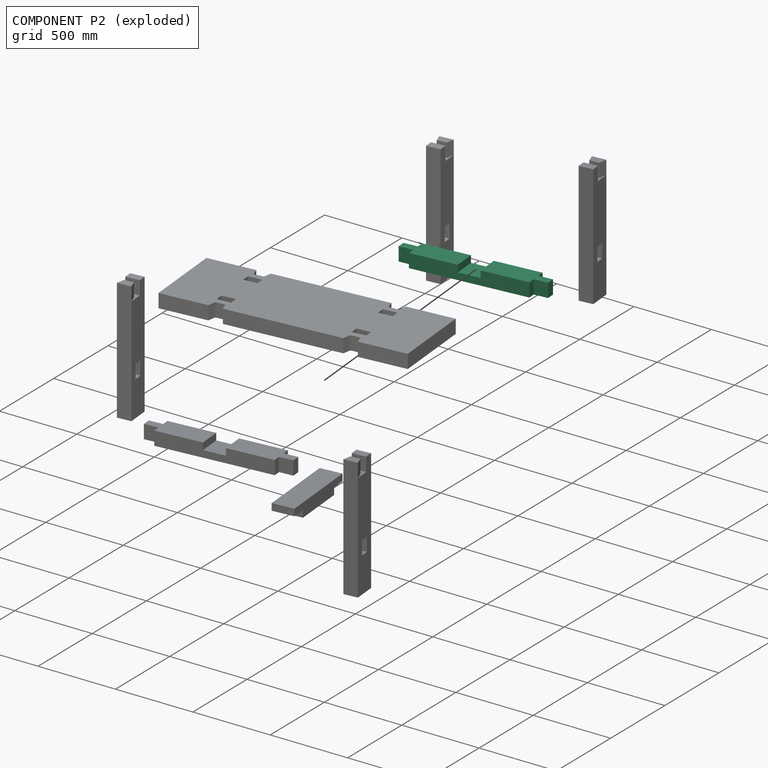
[diagram: component P2 — exploded]
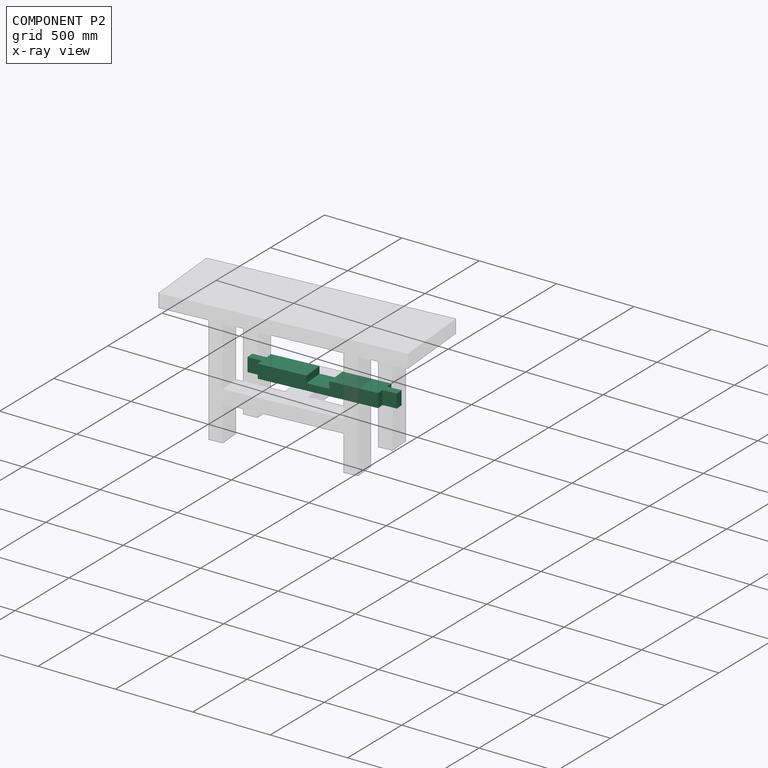
[diagram: component P2 — x-ray view]
COMPONENT P2 — same part as P1 (CADFS 00920091); its construction recipe is shown at P1.
Held by: PLANAR mate "Planar 16" to P7; PLANAR mate "Planar 18" to P7; PLANAR mate "Planar 19" to P3; PLANAR mate "Planar 17" to P7.
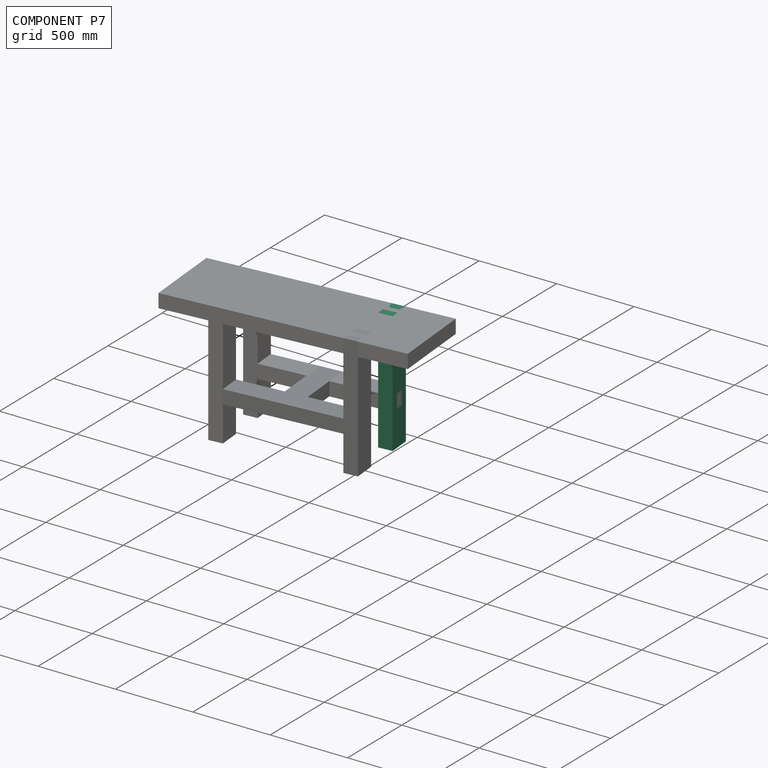
[diagram: component P7 — assembled]
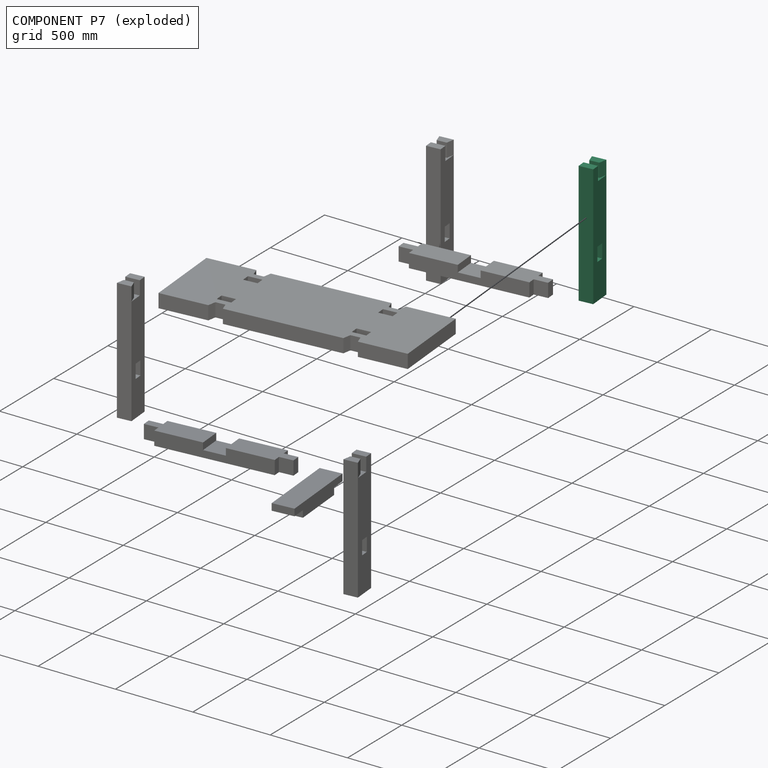
[diagram: component P7 — exploded]
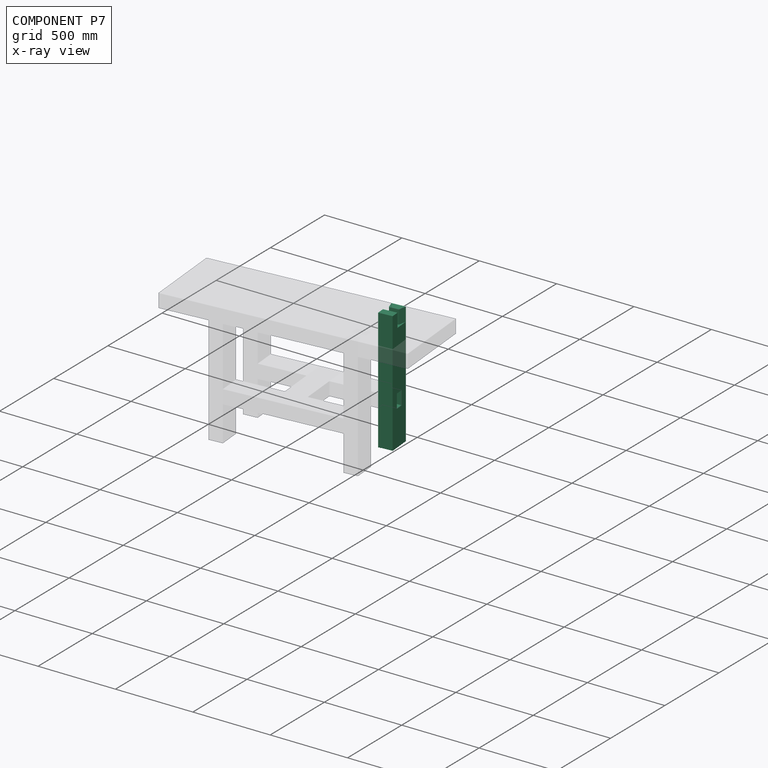
[diagram: component P7 — x-ray view]
COMPONENT P7 — same part as P0 (CADFS 00920090); its construction recipe is shown at P0.
Held by: PLANAR mate "Planar 16" to P2; PLANAR mate "Planar 8" to P4; PLANAR mate "Planar 18" to P2; PLANAR mate "Planar 17" to P2; PLANAR mate "Planar 9" to P4; PLANAR mate "Planar 7" to P4.
PROVENANCE & LICENSES
Assembly (occurrences, transforms, mates, per-part STEP geometry): AutoMate dataset, Zenodo record 7776208, CC0.
Construction recipes: CADFS (HuggingFace VladPyatov/CADFS, CC-BY-4.0, layered over the ABC dataset), FeatureScript reconstruction programs keyed by ABC model id.
Join: ABC meta listings map ABC model id -> Onshape documentId; within a shared document, parts are matched by geometric signature (bounding-box dims + volume at 0.1% relative tolerance, exact B-rep face/solid counts).
Verification: 8 of this assembly's 8 components carry a recipe attachment, and every attachment is mesh-verified: the CADFS STEP and the AutoMate member STEP were compared as meshes in their shared local frame (symmetric sampled-point-to-mesh distance); worst across the 8 attachments: below the mesh-comparison resolution (tessellation chordal tolerance ~2.41 mm) on a 1609 mm part.
Renders: orthographic iso camera (az 35 / el 25); the floor grid conveys scale (grid pitch printed in each image; no ruler). In the exploded view each component is displaced by its stored offset vector: the offsets alone carry the explosion direction (mate normal/axis signs are not orientation cues and do not encode it), and separation distances are assigned per mate-chain, not proportionally to assembly-order depth.
